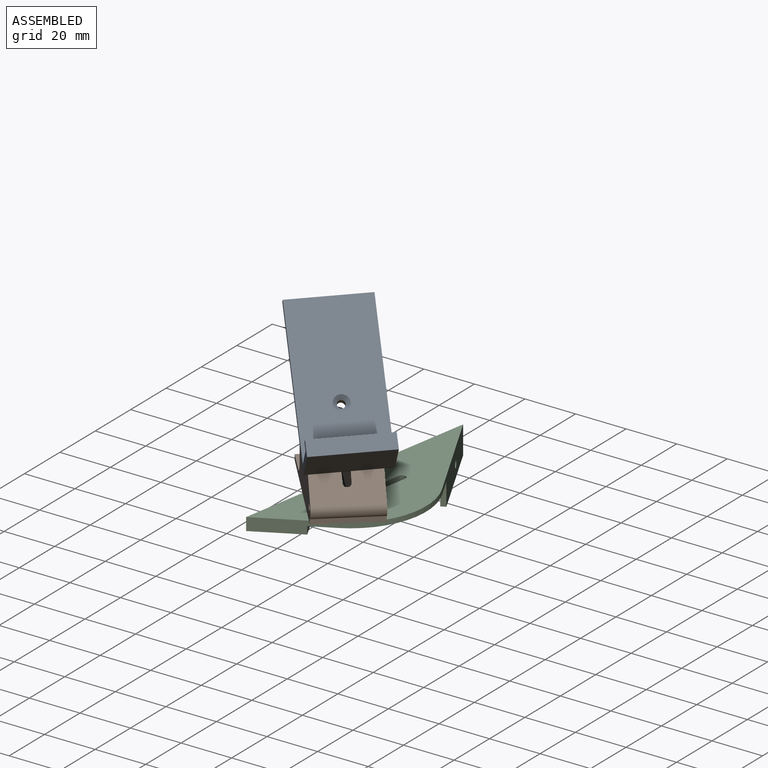
[diagram: assembled view]
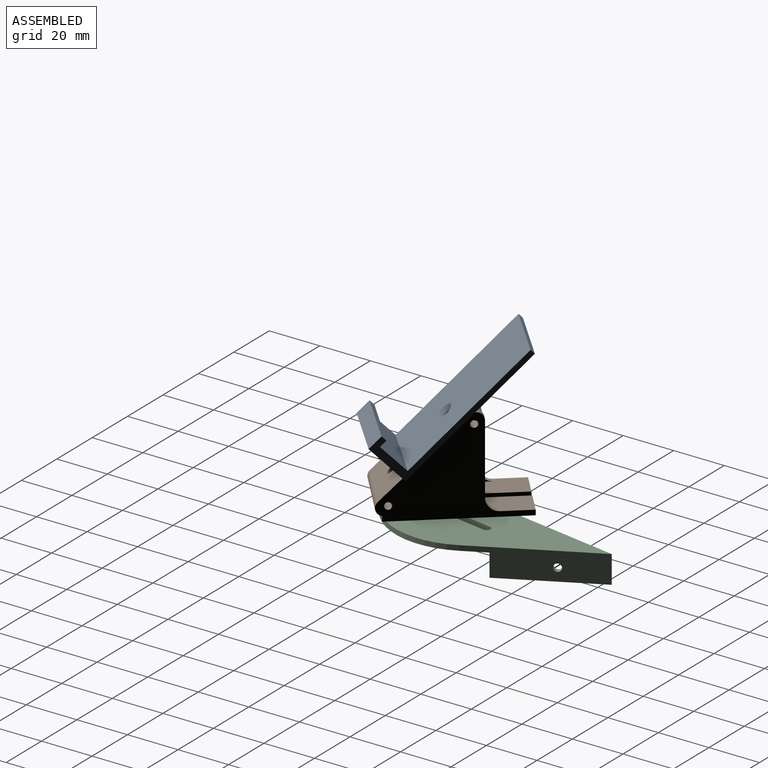
[diagram: assembled view, second angle]
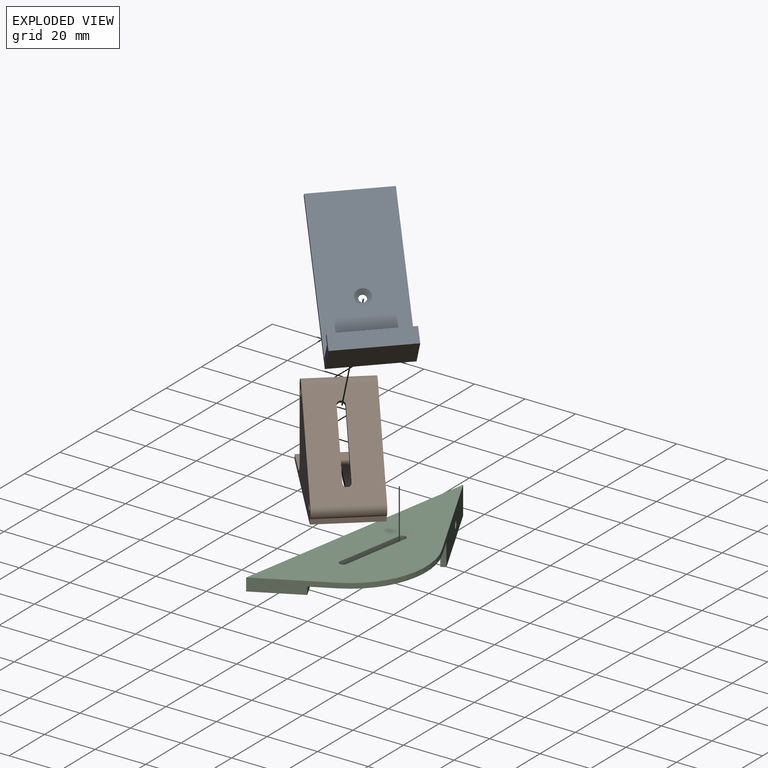
[diagram: exploded view]
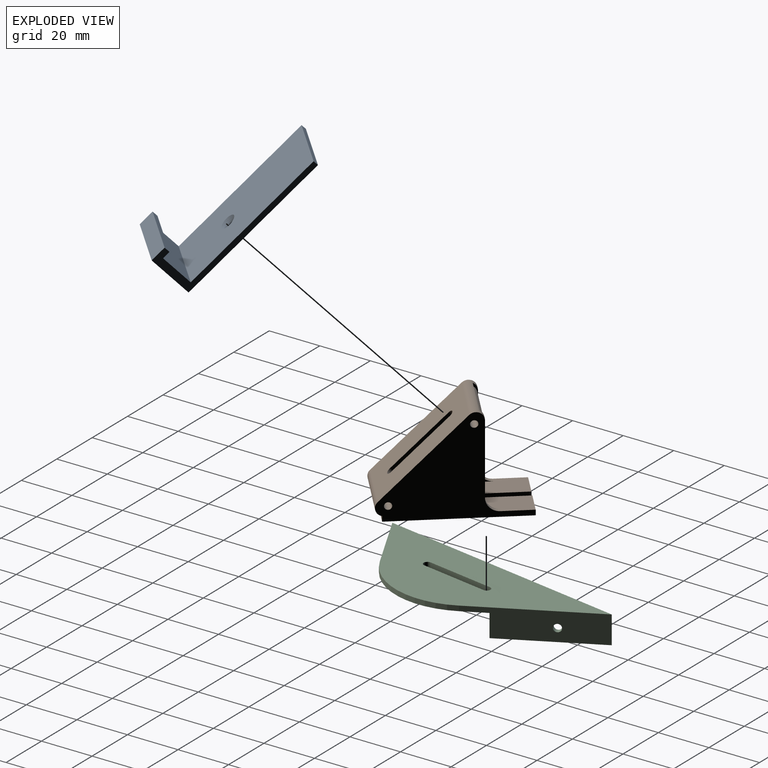
[diagram: exploded view, second angle]
ASSEMBLY  parts=3 mates=2
PART A: 12 faces, bbox 30x60x17 mm
  f0: plane 30x12.76mm, normal (0,1,0), area 382.8mm2, adj f1,f4,f5,f10
  f1: plane 60x17mm, normal (1,0,0), area 171.7mm2, adj f0,f2,f5,f6,f7,f8,f10,f11
  f2: plane 30x2mm, normal (0,1,0), area 60mm2, adj f1,f4,f5,f6
  f3: cylinder r=1.45mm len=2.9mm, axis (0,0,-1), area 4.6mm2, adj f6,f9
  f4: plane 60x17mm, normal (-1,0,0), area 171.7mm2, adj f0,f2,f5,f6,f7,f8,f10,f11
  f5: plane 57x30mm, normal (0,0,1), area 1682.7mm2, adj f0,f1,f2,f4,f9
  f6: plane 60x30mm, normal (0,0,-1), area 1793.4mm2, adj f1,f2,f3,f4,f7
  f7: plane 30x17mm, normal (0,-1,0), area 510mm2, adj f1,f4,f6,f8
  f8: plane 30x6mm, normal (0,0,1), area 180mm2, adj f1,f4,f7,f11
  f9: cone r=1.45mm half-angle=45deg, axis (0,0,1), area 29.3mm2, adj f3,f5
  f10: plane 30x3mm, normal (0,0,-1), area 90mm2, adj f0,f1,f4,f11
  f11: plane 30x2.24mm, normal (0,1,0), area 67.2mm2, adj f1,f4,f8,f10
PART B: 35 faces, bbox 25x52.3x37.8 mm
  f0: cylinder r=1.5mm len=3mm, axis (0,0,1), area 9.4mm2, adj f4,f10,f11,f12
  f1: plane 27.76x2mm, normal (0,1,0), area 55.5mm2, adj f8,f18,f24,f29
  f2: plane 29.83x29.83mm, normal (0,-0.71,-0.71), area 966.6mm2, adj f6,f8,f21,f22,f23,f24,f25,f26
  f3: plane 23.81x23.81mm, normal (0,0.71,0.71), area 619.2mm2, adj f16,f18,f19,f20,f21,f22,f25,f26
  f4: plane 34.02x2mm, normal (1,0,0), area 68mm2, adj f0,f5,f11,f12
  f5: plane 11x2mm, normal (0,1,0), area 22mm2, adj f4,f6,f11,f12
  f6: plane 52.34x37.76mm, normal (-1,0,0), area 872.2mm2, adj f2,f5,f7,f11,f12,f13,f14,f15
  f7: plane 25x2mm, normal (0,-1,0), area 50mm2, adj f6,f8,f11,f23
  f8: plane 52.34x37.76mm, normal (1,0,0), area 872.2mm2, adj f1,f2,f7,f9,f11,f12,f13,f14
  f9: plane 11x2mm, normal (0,1,0), area 22mm2, adj f8,f10,f11,f12
  f10: plane 34.02x2mm, normal (-1,0,0), area 68mm2, adj f0,f9,f11,f12
  f11: plane 50x25mm, normal (0,0,1), area 1144.4mm2, adj f0,f4,f5,f6,f7,f8,f9,f10
  f12: plane 47.35x25mm, normal (0,0,-1), area 934.7mm2, adj f0,f4,f5,f6,f8,f9,f10,f18
  f13: cylinder r=1.35mm len=25mm, axis (-1,0,0), area 212.1mm2, adj f6,f8
  f14: cylinder r=1.35mm len=25mm, axis (-1,0,0), area 212.1mm2, adj f6,f8
  f15: plane 27.76x2mm, normal (0,1,0), area 55.5mm2, adj f6,f19,f24,f28
  f16: cylinder r=3.35mm len=21mm, axis (-1,0,0), area 286.3mm2, adj f3,f17,f18,f19
  f17: plane 21x0.74mm, normal (0,0.71,0.71), area 21.8mm2, adj f16,f18,f19,f24
  f18: plane 36.49x35.46mm, normal (-1,0,0), area 633.3mm2, adj f1,f3,f12,f16,f17,f20,f24,f27
  f19: plane 36.49x35.46mm, normal (1,0,0), area 633.3mm2, adj f3,f12,f15,f16,f17,f20,f24,f27
  f20: cylinder r=3.35mm len=21mm, axis (-1,0,0), area 197.2mm2, adj f3,f18,f19,f27
  f21: plane 20.51x20.51mm, normal (-1,0,0), area 54mm2, adj f2,f3,f25,f26
  f22: plane 20.51x20.51mm, normal (1,0,0), area 54mm2, adj f2,f3,f25,f26
  f23: cylinder r=3mm len=25mm, axis (1,0,0), area 160.1mm2, adj f2,f6,f7,f8
  f24: cylinder r=3mm len=25mm, axis (-1,0,0), area 105.8mm2, adj f1,f2,f6,f8,f15,f17,f18,f19
  f25: cylinder r=1.5mm len=3mm, axis (0,0.71,0.71), area 9.4mm2, adj f2,f3,f21,f22
  f26: cylinder r=1.5mm len=3mm, axis (0,0.71,0.71), area 9.4mm2, adj f2,f3,f21,f22
  f27: cylinder r=1.5mm len=21mm, axis (-1,0,0), area 14.2mm2, adj f12,f18,f19,f20
  f28: cylinder r=5mm len=5mm, axis (1,0,0), area 15.7mm2, adj f6,f12,f15,f19
  f29: cylinder r=5mm len=5mm, axis (1,0,0), area 15.7mm2, adj f1,f8,f12,f18
  f30: plane 21x0.44mm, normal (0,0.71,0.71), area 13.1mm2, adj f31,f32,f33,f34
  f31: plane 0.63x0.44mm, normal (1,0,0), area 0.1mm2, adj f30,f33,f34
  f32: plane 0.63x0.44mm, normal (-1,0,0), area 0.1mm2, adj f30,f33,f34
  f33: plane 21x0.63mm, normal (0,0,-1), area 13.1mm2, adj f30,f31,f32,f34
  f34: cylinder r=3.35mm len=21mm, axis (-1,0,0), area 10.1mm2, adj f30,f31,f32,f33
PART C: 22 faces, bbox 60x80x11 mm
  f0: plane 77.33x51mm, normal (0,0,-1), area 1855.3mm2, adj f3,f4,f5,f6,f7,f8,f11,f12
  f1: plane 80x60mm, normal (0,0,1), area 2118.7mm2, adj f3,f4,f5,f6,f18,f19,f20,f21
  f2: plane 20x12mm, normal (0,0,-1), area 98mm2, adj f3,f4,f11,f12,f13,f14,f16,f17
  f3: plane 80x60mm, normal (-0.8,0.6,0), area 275mm2, adj f0,f1,f2,f4,f6,f7,f9,f12
  f4: plane 30x5mm, normal (0,-1,0), area 120mm2, adj f0,f1,f2,f3,f5,f11
  f5: cylinder r=30mm len=30mm, axis (0,0,1), area 94.2mm2, adj f0,f1,f4,f6
  f6: plane 50x11mm, normal (1,0,0), area 452.9mm2, adj f0,f1,f3,f5,f8,f9,f10
  f7: plane 37.33x9mm, normal (-1,0,0), area 328.9mm2, adj f0,f3,f8,f9,f10
  f8: plane 9x2mm, normal (0,-1,0), area 18mm2, adj f0,f6,f7,f9
  f9: plane 40x2mm, normal (0,0,-1), area 77.3mm2, adj f3,f6,f7,f8
  f10: cylinder r=1.5mm len=3mm, axis (-1,0,0), area 18.8mm2, adj f6,f7
  f11: plane 12x3mm, normal (1,0,0), area 36mm2, adj f0,f2,f4,f12
  f12: plane 11x3mm, normal (0,1,0), area 33mm2, adj f0,f2,f3,f11
  f13: plane 8x6mm, normal (0.8,-0.6,0), area 30mm2, adj f2,f14,f15,f17
  f14: plane 14x3mm, normal (0,1,0), area 42mm2, adj f2,f13,f15,f16
  f15: plane 14x8mm, normal (0,0,-1), area 88mm2, adj f13,f14,f16,f17
  f16: plane 8x3mm, normal (-1,0,0), area 24mm2, adj f2,f14,f15,f17
  f17: plane 8x3mm, normal (0,-1,0), area 24mm2, adj f2,f13,f15,f16
  f18: plane 21.63x16.22mm, normal (0.8,-0.6,0), area 54.1mm2, adj f0,f1,f20,f21
  f19: plane 21.63x16.22mm, normal (-0.8,0.6,0), area 54.1mm2, adj f0,f1,f20,f21
  f20: cylinder r=1.5mm len=2.7mm, axis (0,0,-1), area 9.4mm2, adj f0,f1,f18,f19
  f21: cylinder r=1.5mm len=2.7mm, axis (0,0,-1), area 9.4mm2, adj f0,f1,f18,f19
PLACE A rot(axis=(0.71,0.24,0.66),61.6deg) t=(11.77,-70.58,68.86)mm
PLACE B rot(axis=(-0.35,0.94,0),180deg) t=(8.42,-66.19,34.36)mm
PLACE C rot(axis=(0,0,1),27.2deg) t=(0.05,-62.13,32.36)mm
MATE revolute A.f3 <-> B.f26  axis (-0.46,0.54,-0.71) through (15.22,-74.13,63.91)mm
MATE revolute B.f0 <-> C.f20  axis (0,0,-1) through (19.82,-79.48,32.36)mm
